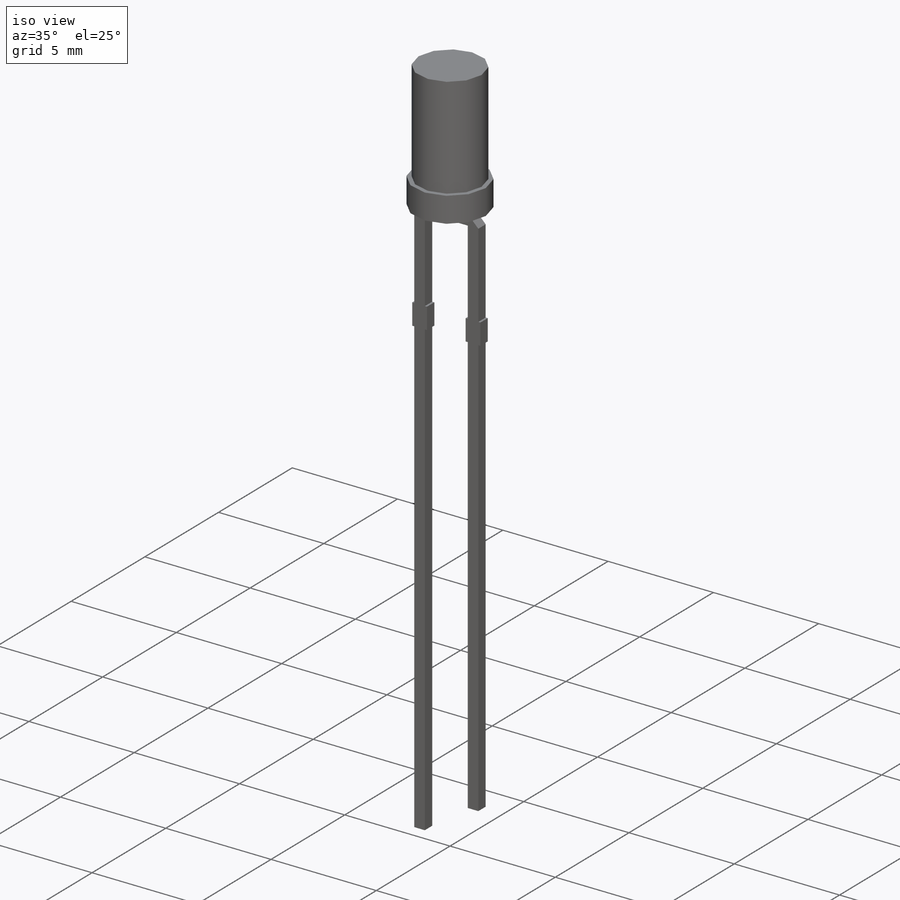
[diagram: iso view]
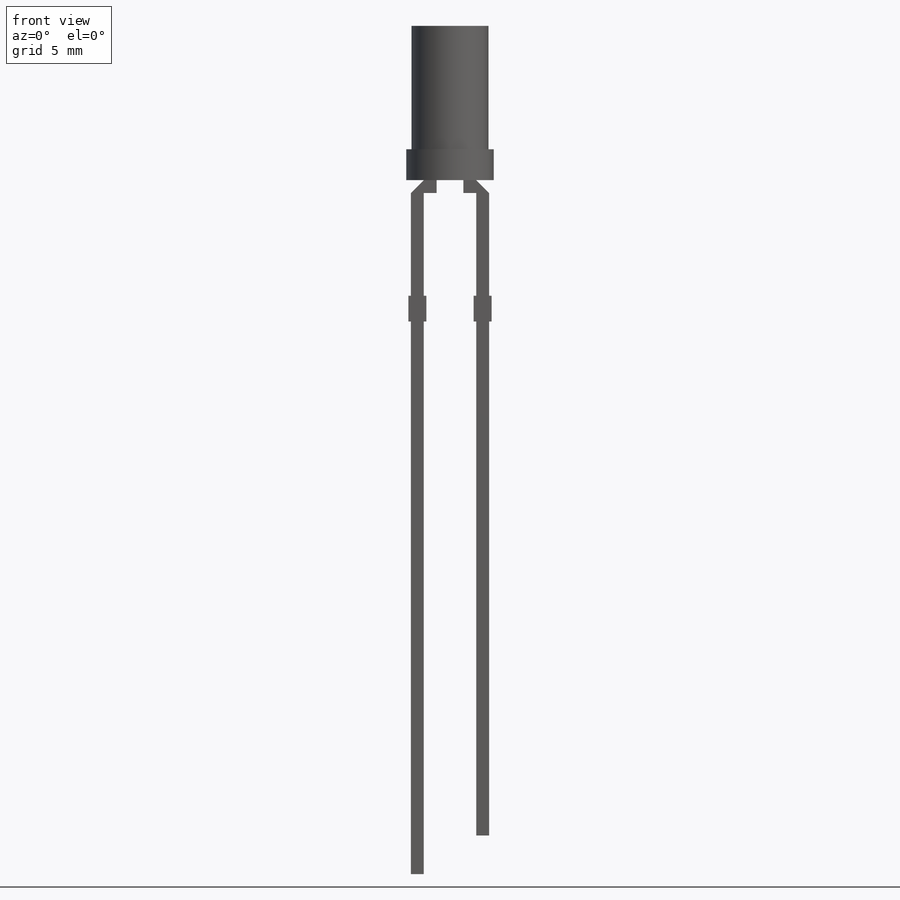
[diagram: front view]
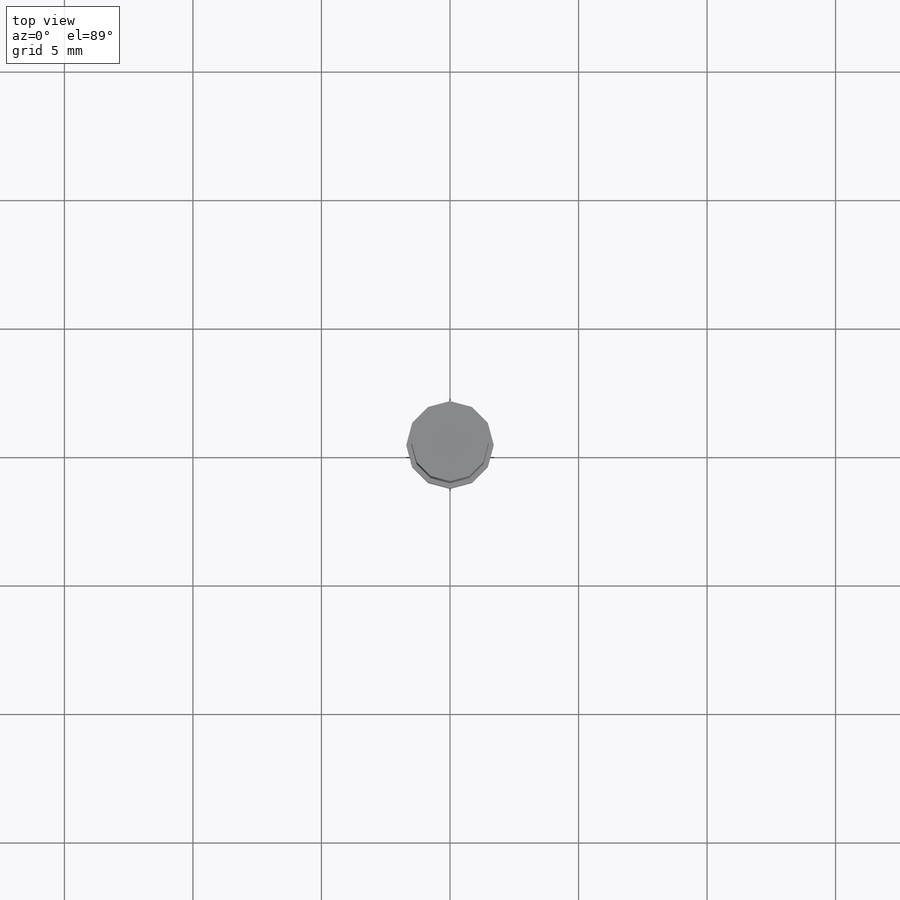
[diagram: top view]
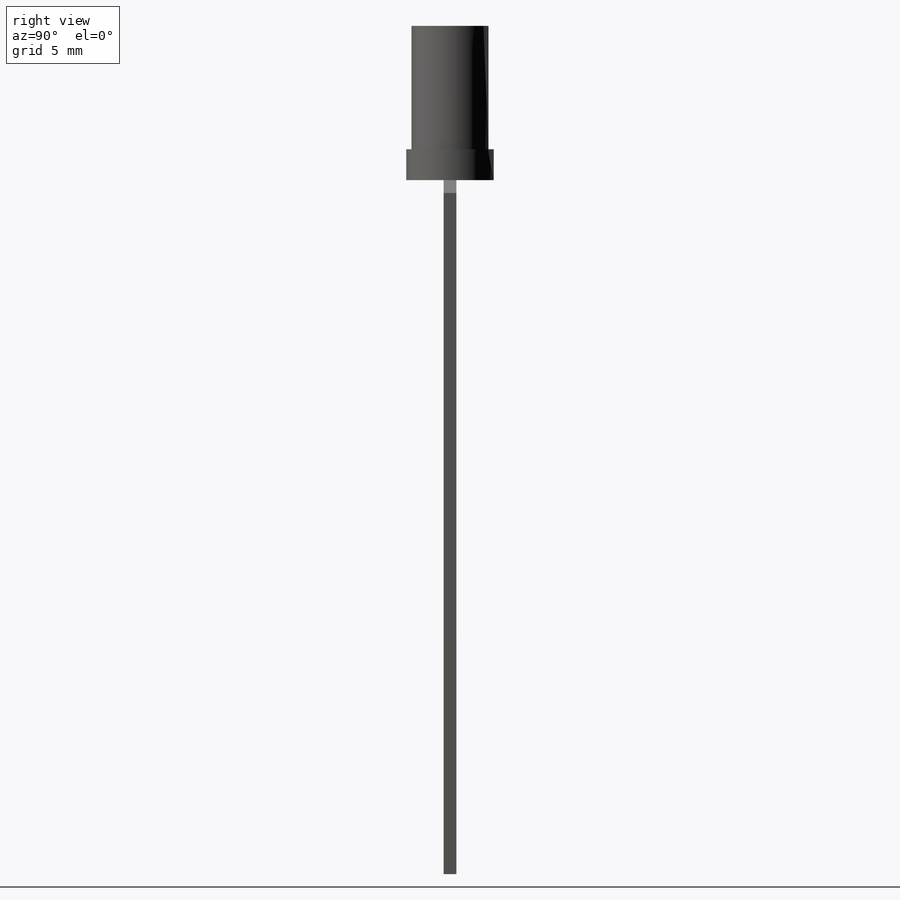
[diagram: right view]
SOLIDWORKS PART (.sldprt)
format: sldprt  version: not decoded by parser v0  size: 595,968 bytes
history: native  units: mm
features: sketch x4, extrude x2, material x1, revolve x1, cut_extrude x1 (+11 scaffold rows collapsed)
feature tree (20):
  scaffold x11  (default folders/planes/origin — collapsed)
  material  "Material <not specified>"
  sketch  "Sketch1"  dims[D1=3.4mm D2=3.0mm D3=3.0mm]
  extrude  "Extrude1"  Depth=1.2mm
  sketch  "Sketch2"  dims[c1.D1=4.8mm c1.D2=1.5mm c1.D3=~0.499056mm c2.D3=~125.231707deg c3.D3=0.5mm c3.D4=6.5mm c3.D5=0.5mm c3.D6=~0.499056mm c4.D6=~215.231707deg c5.D6=~4.966235mm c6.D6=45.0deg c6.D7=5.0mm c6.D8=0.7mm c6.D9=27.0mm c6.D10=~3.313555mm c7.D9=27.0mm c7.D10=1.5mm c7.D11=2.54mm c7.D4=6.5mm c7.D12=1.0mm c7.D7=10.5mm]
  extrude  "Extrude2"  Depth=0.5mm
  revolve  "Revolve1"  [1 undecoded]
  sketch  "Sketch2<3>"  dims[D1=360.0deg]
  sketch  "Sketch3"  dims[D1=5.0mm]
  cut_extrude  "Cut-Extrude1"  Depth=0.1mm
decode coverage: 7 of 8 modeling features carry decoded parameters
note: ~ marks probable driven/reference dimensions
note: 1 parameter value undecoded
note: suppression state not decoded; provenance and decode notes live in map.json
